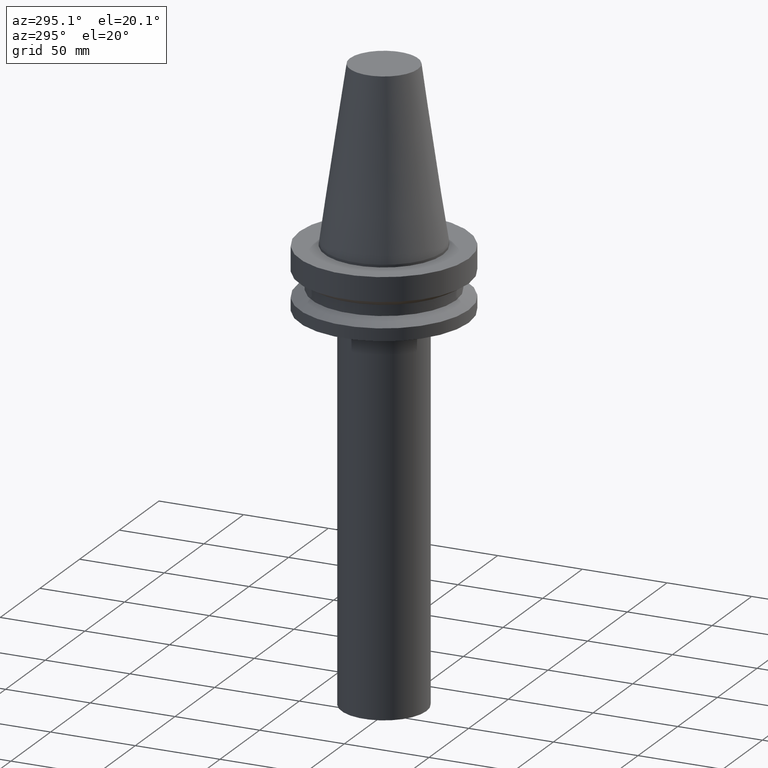
[diagram: clean part render]
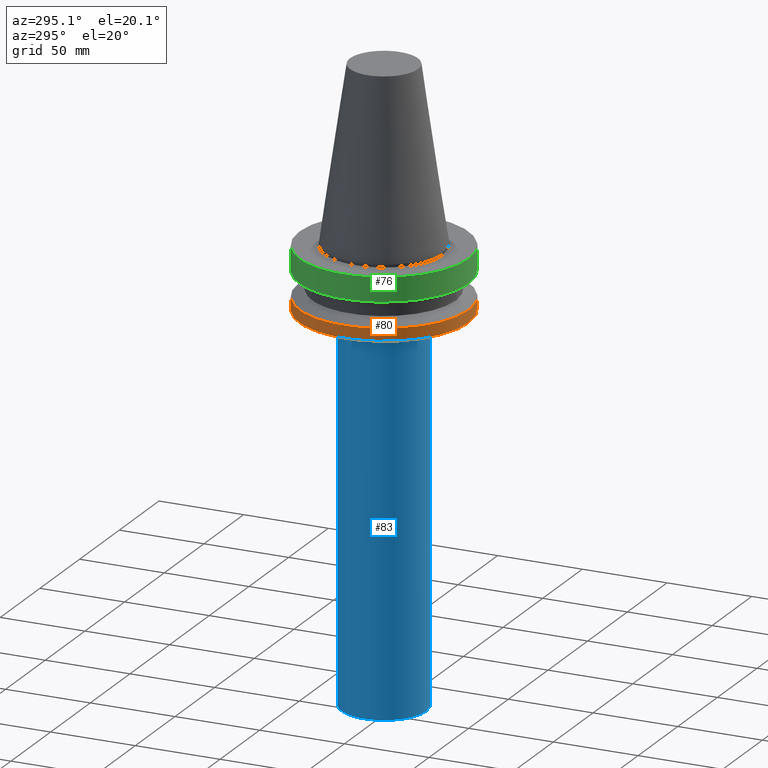
[diagram: same view with three faces highlighted in distinct colors, each labeled with its STEP entity id]
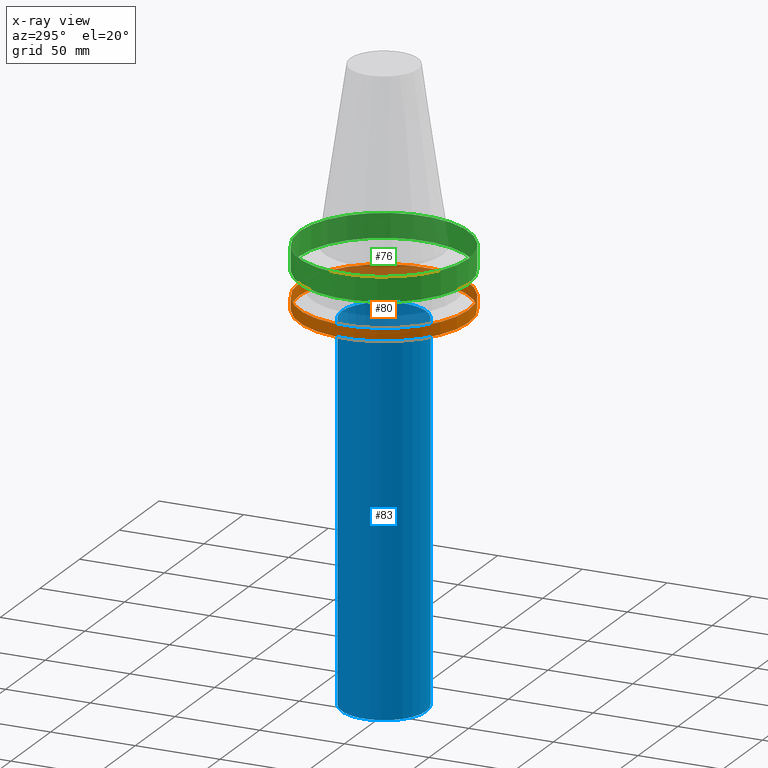
[diagram: x-ray of the same camera — body ghosted, the three highlighted faces saturated]
A machine part, auxiliary view with three faces highlighted in distinct colors.
The next image is the same camera in x-ray (body ghosted, the three faces saturated) — at least one of them is partly hidden behind the body in this view.
Their STEP definitions:

[orange] entity #80 — the highlighted cylindrical surface (bore or boss wall) has radius 50 mm, axis along (-0, -0, 1).
#80=ADVANCED_FACE('',(#104,#105),#106,.T.);
#104=FACE_BOUND('',#141,.T.);
#105=FACE_BOUND('',#142,.T.);
#106=CYLINDRICAL_SURFACE('',#143,50.0);
#141=EDGE_LOOP('',(#188));
#142=EDGE_LOOP('',(#189));
#143=AXIS2_PLACEMENT_3D('',#190,#191,#192);
#188=ORIENTED_EDGE('',*,*,#232,.F.);
#189=ORIENTED_EDGE('',*,*,#231,.T.);
#190=CARTESIAN_POINT('',(2.10333087753558E-015,4.20666175507116E-015,-34.35));
#191=DIRECTION('',(-6.12323399573677E-017,-1.22464679914735E-016,1.0));
#192=DIRECTION('',(-1.23259516440783E-032,1.0,1.22464679914735E-016));
#231=EDGE_CURVE('',#248,#248,#249,.T.);
#232=EDGE_CURVE('',#250,#250,#251,.T.);
#248=VERTEX_POINT('',#272);
#249=CIRCLE('',#273,50.0);
#250=VERTEX_POINT('',#274);
#251=CIRCLE('',#275,50.0);
#272=CARTESIAN_POINT('',(1.87983283669119E-015,50.0,-30.7));
#273=AXIS2_PLACEMENT_3D('',#301,#302,#303);
#274=CARTESIAN_POINT('',(2.32682891837997E-015,50.0,-38.0));
#275=AXIS2_PLACEMENT_3D('',#304,#305,#306);
#301=CARTESIAN_POINT('',(1.87983283669119E-015,3.75966567338237E-015,-30.7));
#302=DIRECTION('',(6.12323399573677E-017,1.22464679914735E-016,-1.0));
#303=DIRECTION('',(-1.23259516440783E-032,1.0,1.22464679914735E-016));
#304=CARTESIAN_POINT('',(2.32682891837997E-015,4.65365783675994E-015,-38.0));
#305=DIRECTION('',(6.12323399573677E-017,1.22464679914735E-016,-1.0));
#306=DIRECTION('',(-1.23259516440783E-032,1.0,1.22464679914735E-016));

[blue] entity #83 — the highlighted cylindrical surface (bore or boss wall) has radius 25 mm, axis along (-0, -0, 1).
#83=ADVANCED_FACE('',(#113,#114),#115,.T.);
#113=FACE_BOUND('',#150,.T.);
#114=FACE_BOUND('',#151,.T.);
#115=CYLINDRICAL_SURFACE('',#152,25.0);
#150=EDGE_LOOP('',(#203));
#151=EDGE_LOOP('',(#204));
#152=AXIS2_PLACEMENT_3D('',#205,#206,#207);
#203=ORIENTED_EDGE('',*,*,#235,.F.);
#204=ORIENTED_EDGE('',*,*,#234,.T.);
#205=CARTESIAN_POINT('',(9.36854801347725E-015,1.87370960269545E-014,-153.0));
#206=DIRECTION('',(-6.12323399573677E-017,-1.22464679914735E-016,1.0));
#207=DIRECTION('',(-1.23259516440783E-032,1.0,1.22464679914735E-016));
#234=EDGE_CURVE('',#254,#254,#255,.T.);
#235=EDGE_CURVE('',#256,#256,#257,.T.);
#254=VERTEX_POINT('',#278);
#255=CIRCLE('',#279,25.0);
#256=VERTEX_POINT('',#280);
#257=CIRCLE('',#281,25.0);
#278=CARTESIAN_POINT('',(2.63299061816681E-015,25.0,-43.0));
#279=AXIS2_PLACEMENT_3D('',#310,#311,#312);
#280=CARTESIAN_POINT('',(1.61041054087877E-014,25.0,-263.0));
#281=AXIS2_PLACEMENT_3D('',#313,#314,#315);
#310=CARTESIAN_POINT('',(2.63299061816681E-015,5.26598123633362E-015,-43.0));
#311=DIRECTION('',(6.12323399573677E-017,1.22464679914735E-016,-1.0));
#312=DIRECTION('',(-1.23259516440783E-032,1.0,1.22464679914735E-016));
#313=CARTESIAN_POINT('',(1.61041054087877E-014,3.22082108175754E-014,-263.0));
#314=DIRECTION('',(6.12323399573677E-017,1.22464679914735E-016,-1.0));
#315=DIRECTION('',(-1.23259516440783E-032,1.0,1.22464679914735E-016));

[green] entity #76 — the highlighted cylindrical surface (bore or boss wall) has radius 50 mm, axis along (-0, -0, 1).
#76=ADVANCED_FACE('',(#92,#93),#94,.T.);
#92=FACE_BOUND('',#129,.T.);
#93=FACE_BOUND('',#130,.T.);
#94=CYLINDRICAL_SURFACE('',#131,50.0);
#129=EDGE_LOOP('',(#168));
#130=EDGE_LOOP('',(#169));
#131=AXIS2_PLACEMENT_3D('',#170,#171,#172);
#168=ORIENTED_EDGE('',*,*,#228,.F.);
#169=ORIENTED_EDGE('',*,*,#226,.T.);
#170=CARTESIAN_POINT('',(5.26598123633362E-016,1.05319624726672E-015,-8.6));
#171=DIRECTION('',(-6.12323399573677E-017,-1.22464679914735E-016,1.0));
#172=DIRECTION('',(-1.23259516440783E-032,1.0,1.22464679914735E-016));
#226=EDGE_CURVE('',#238,#238,#239,.T.);
#228=EDGE_CURVE('',#242,#242,#243,.T.);
#238=VERTEX_POINT('',#262);
#239=CIRCLE('',#263,50.0);
#242=VERTEX_POINT('',#266);
#243=CIRCLE('',#267,50.0);
#262=CARTESIAN_POINT('',(9.1848509936051E-017,50.0,-1.5));
#263=AXIS2_PLACEMENT_3D('',#286,#287,#288);
#266=CARTESIAN_POINT('',(9.61347737330672E-016,50.0,-15.7));
#267=AXIS2_PLACEMENT_3D('',#292,#293,#294);
#286=CARTESIAN_POINT('',(9.18485099360516E-017,1.83697019872103E-016,-1.5));
#287=DIRECTION('',(6.12323399573677E-017,1.22464679914735E-016,-1.0));
#288=DIRECTION('',(-1.23259516440783E-032,1.0,1.22464679914735E-016));
#292=CARTESIAN_POINT('',(9.61347737330672E-016,1.92269547466134E-015,-15.7));
#293=DIRECTION('',(6.12323399573677E-017,1.22464679914735E-016,-1.0));
#294=DIRECTION('',(-1.23259516440783E-032,1.0,1.22464679914735E-016));